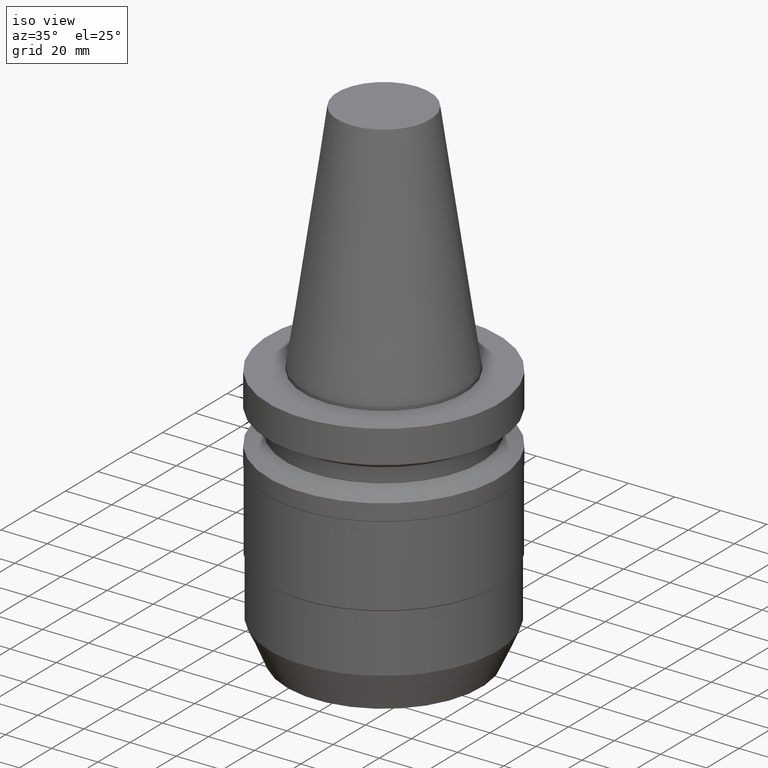
[diagram: clean part render]
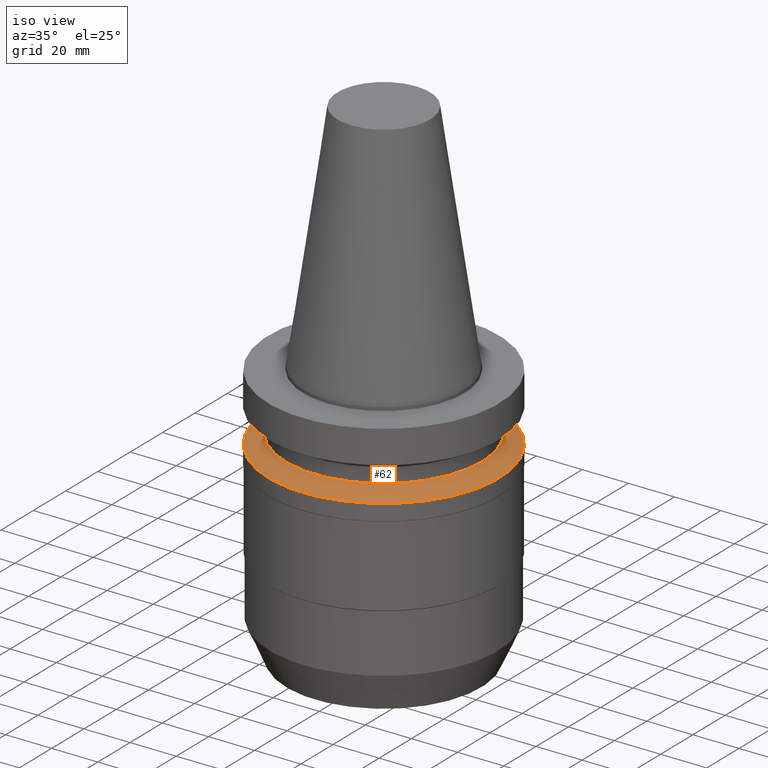
[diagram: same view with one face highlighted and labeled with its STEP entity id]
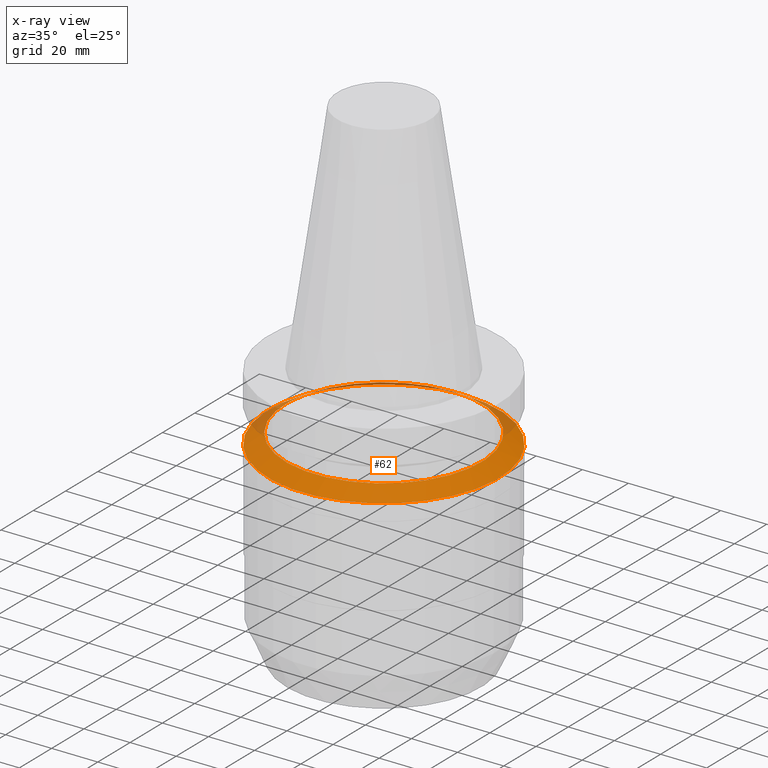
[diagram: x-ray of the same camera — body ghosted, the highlighted face saturated]
A machine part, iso view. The second image highlights one B-rep face of the part: STEP entity #62.
The next image is the same camera in x-ray: the body ghosted, the highlighted face saturated — about 12% of this face is hidden behind the body in this view.
In plain terms, the highlighted conical surface has half-angle 60 deg.
Its self-contained STEP definition (entity closure, byte-faithful):
#62=ADVANCED_FACE('Unnamed[1]',(#166,#167),#168,.T.);
#121=EDGE_CURVE('Unnamed[1]',#258,#258,#259,.T.);
#123=EDGE_CURVE('Unnamed[1]',#261,#261,#262,.T.);
#166=FACE_BOUND('',#308,.T.);
#167=FACE_BOUND('',#309,.T.);
#168=CONICAL_SURFACE('',#310,46.25,1.04719755108882);
#258=VERTEX_POINT('',#422);
#259=CIRCLE('',#423,50.0);
#261=VERTEX_POINT('',#426);
#262=CIRCLE('',#427,42.5);
#308=EDGE_LOOP('',(#474));
#309=EDGE_LOOP('',(#475));
#310=AXIS2_PLACEMENT_3D('',#476,#477,#478);
#422=CARTESIAN_POINT('',(1.87983283669119E-015,50.0,-30.7000000000001));
#423=AXIS2_PLACEMENT_3D('',#577,#578,#579);
#426=CARTESIAN_POINT('',(1.61468902694397E-015,42.5,-26.3698729800001));
#427=AXIS2_PLACEMENT_3D('',#580,#581,#582);
#474=ORIENTED_EDGE('',*,*,#121,.F.);
#475=ORIENTED_EDGE('',*,*,#123,.T.);
#476=CARTESIAN_POINT('',(1.74726093181758E-015,3.49452186363516E-015,-28.5349364900001));
#477=DIRECTION('',(6.12323399573676E-017,1.22464679914735E-016,-1.0));
#478=DIRECTION('',(-1.23259516440783E-032,1.0,1.22464679914735E-016));
#577=CARTESIAN_POINT('',(1.87983283669119E-015,3.75966567338238E-015,-30.7000000000001));
#578=DIRECTION('',(6.12323399573677E-017,1.22464679914735E-016,-1.0));
#579=DIRECTION('',(-1.23259516440783E-032,1.0,1.22464679914735E-016));
#580=CARTESIAN_POINT('',(1.61468902694397E-015,3.22937805388794E-015,-26.3698729800001));
#581=DIRECTION('',(6.12323399573677E-017,1.22464679914735E-016,-1.0));
#582=DIRECTION('',(-1.23259516440783E-032,1.0,1.22464679914735E-016));